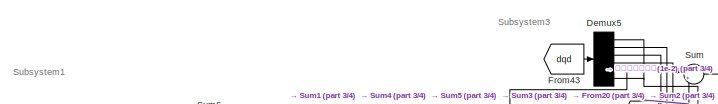
[diagram: root canvas - part 1/4, top center region]
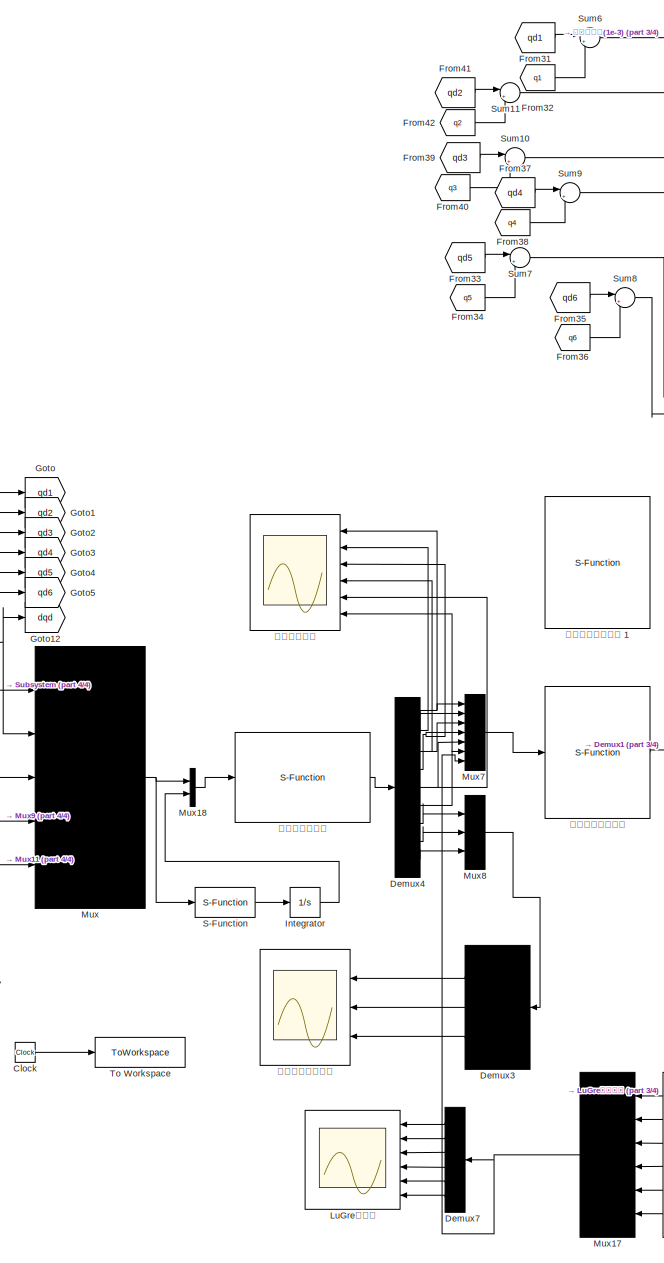
[diagram: root canvas - part 2/4, center side, full height]
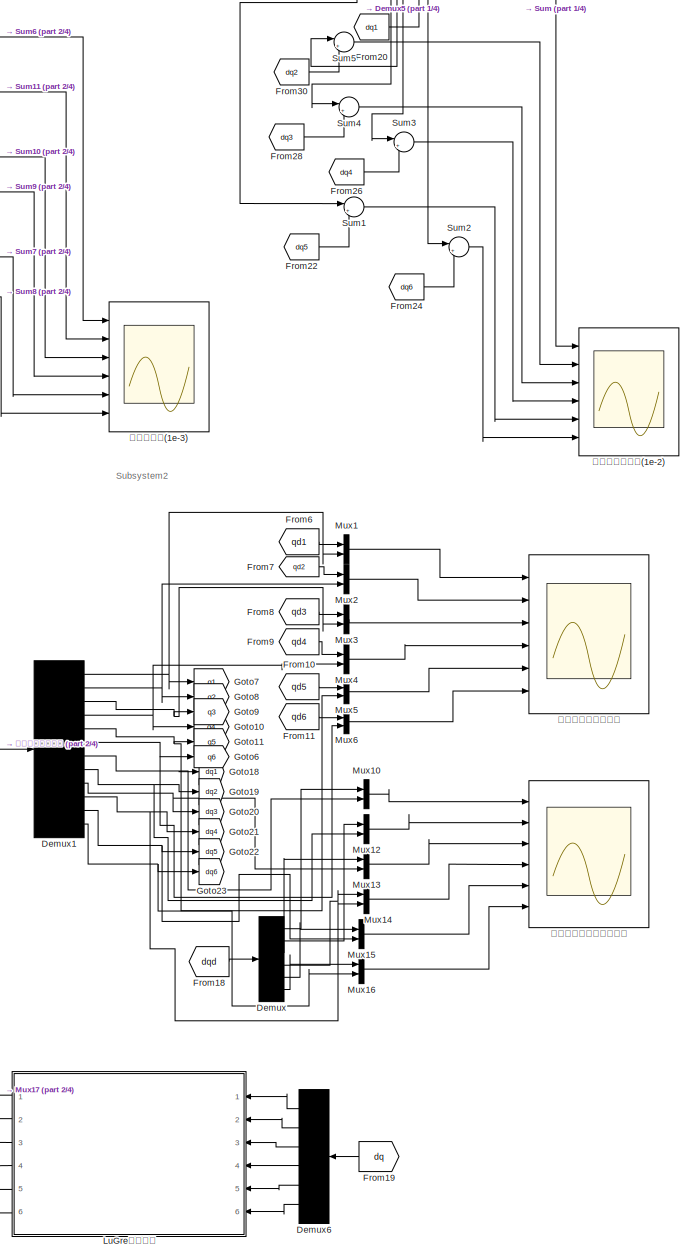
[diagram: root canvas - part 3/4, right side, full height]
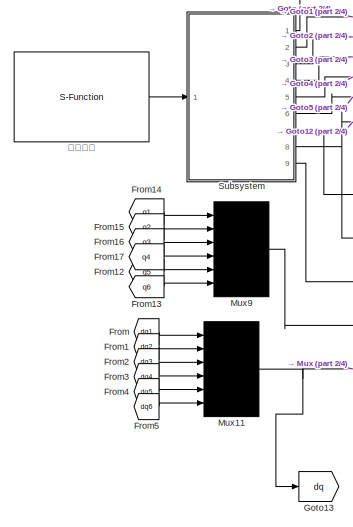
[diagram: root canvas - part 4/4, middle left region]
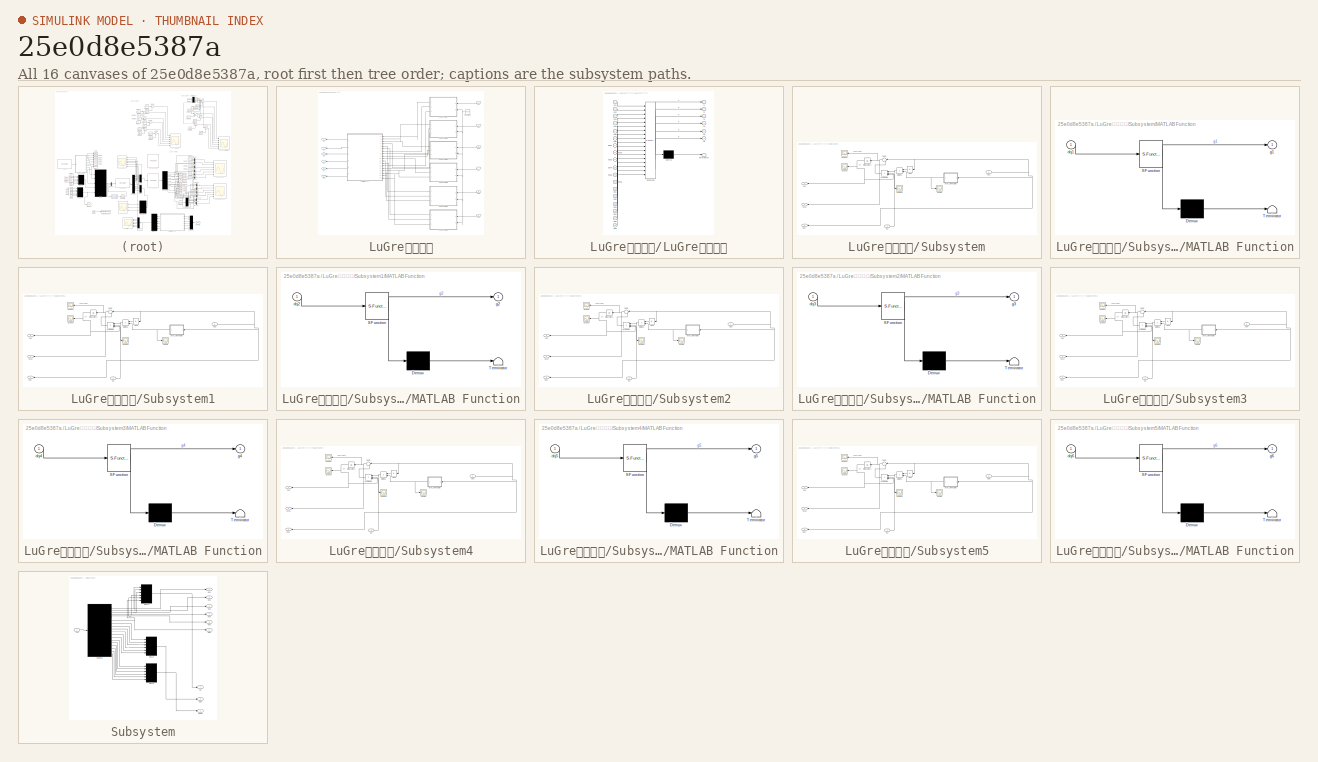
[diagram: thumbnail index - all 16 canvases of the model, root first then tree order]
MODEL slx_25e0d8e5387a
KIND model
CONFIG AbsTol = auto
CONFIG EnableMultiTasking = off
CONFIG FixedStep = 0.01
CONFIG MaxStep = 0.05
CONFIG MinStep = auto
CONFIG RelTol = 1e-3
CONFIG SampleTimeConstraint = Unconstrained
CONFIG Solver = ode45
CONFIG SolverName = ode45
CONFIG StartTime = 0.0
CONFIG StopTime = 5
BLOCK [Clock] Clock
BLOCK [Demux] Demux
  DisplayOption = bar
  Outputs = 6
  Ports = [1, 6]
BLOCK [Demux] Demux1
  DisplayOption = bar
  Outputs = 12
  Ports = [1, 12]
BLOCK [Demux] Demux3
  DisplayOption = bar
  Outputs = 3
  Ports = [1, 3]
BLOCK [Demux] Demux4
  DisplayOption = bar
  Outputs = 9
  Ports = [1, 9]
BLOCK [Demux] Demux5
  DisplayOption = bar
  Outputs = 6
  Ports = [1, 6]
BLOCK [Demux] Demux6
  DisplayOption = bar
  Outputs = 6
  Ports = [1, 6]
BLOCK [Demux] Demux7
  DisplayOption = bar
  Outputs = 6
  Ports = [1, 6]
BLOCK [From] From
  GotoTag = dq1
BLOCK [From] From1
  GotoTag = dq2
BLOCK [From] From10
  GotoTag = qd5
BLOCK [From] From11
  GotoTag = qd6
BLOCK [From] From12
  GotoTag = q5
BLOCK [From] From13
  GotoTag = q6
BLOCK [From] From14
  GotoTag = q1
BLOCK [From] From15
  GotoTag = q2
BLOCK [From] From16
  GotoTag = q3
BLOCK [From] From17
  GotoTag = q4
BLOCK [From] From18
  GotoTag = dqd
BLOCK [From] From19
  GotoTag = dq
BLOCK [From] From2
  GotoTag = dq3
BLOCK [From] From20
  GotoTag = dq1
BLOCK [From] From22
  GotoTag = dq5
BLOCK [From] From24
  GotoTag = dq6
BLOCK [From] From26
  GotoTag = dq4
BLOCK [From] From28
  GotoTag = dq3
BLOCK [From] From3
  GotoTag = dq4
BLOCK [From] From30
  GotoTag = dq2
BLOCK [From] From31
  GotoTag = qd1
BLOCK [From] From32
  GotoTag = q1
BLOCK [From] From33
  GotoTag = qd5
BLOCK [From] From34
  GotoTag = q5
BLOCK [From] From35
  GotoTag = qd6
BLOCK [From] From36
  GotoTag = q6
BLOCK [From] From37
  GotoTag = qd4
BLOCK [From] From38
  GotoTag = q4
BLOCK [From] From39
  GotoTag = qd3
BLOCK [From] From4
  GotoTag = dq5
BLOCK [From] From40
  GotoTag = q3
BLOCK [From] From41
  GotoTag = qd2
BLOCK [From] From42
  GotoTag = q2
BLOCK [From] From43
  GotoTag = dqd
BLOCK [From] From5
  GotoTag = dq6
BLOCK [From] From6
  GotoTag = qd1
BLOCK [From] From7
  GotoTag = qd2
BLOCK [From] From8
  GotoTag = qd3
BLOCK [From] From9
  GotoTag = qd4
BLOCK [Goto] Goto
  GotoTag = qd1
BLOCK [Goto] Goto1
  GotoTag = qd2
BLOCK [Goto] Goto10
  GotoTag = q4
BLOCK [Goto] Goto11
  GotoTag = q5
BLOCK [Goto] Goto12
  GotoTag = dqd
BLOCK [Goto] Goto13
  GotoTag = dq
BLOCK [Goto] Goto18
  GotoTag = dq1
BLOCK [Goto] Goto19
  GotoTag = dq2
BLOCK [Goto] Goto2
  GotoTag = qd3
BLOCK [Goto] Goto20
  GotoTag = dq3
BLOCK [Goto] Goto21
  GotoTag = dq4
BLOCK [Goto] Goto22
  GotoTag = dq5
BLOCK [Goto] Goto23
  GotoTag = dq6
BLOCK [Goto] Goto3
  GotoTag = qd4
BLOCK [Goto] Goto4
  GotoTag = qd5
BLOCK [Goto] Goto5
  GotoTag = qd6
BLOCK [Goto] Goto6
  GotoTag = q6
BLOCK [Goto] Goto7
  GotoTag = q1
BLOCK [Goto] Goto8
  GotoTag = q2
BLOCK [Goto] Goto9
  GotoTag = q3
BLOCK [Integrator] Integrator
  Ports = [1, 1]
BLOCK [Scope] LuGre摩擦力
  Floating = off
  NumInputPorts = 6
  Ports = [6]
  ScopeSpecificationString = Simulink.scopes.TimeScopeBlockCfg('CurrentConfiguration', extmgr.ConfigurationSet(extmgr.Configuration('Core','General UI',true,'FigureColor',[1 1 1]),extmgr.Configuration('Core','Source UI',true),extmgr.Configuration('Sources','WiredSimulink',true,'DataLoggingVariableName','ScopeData1'),extmgr.Configuration('Visuals','Time Domain',true,'SerializedDisplays',{struct('MinYLimReal','-701.30904','MaxY...<+5512ch>
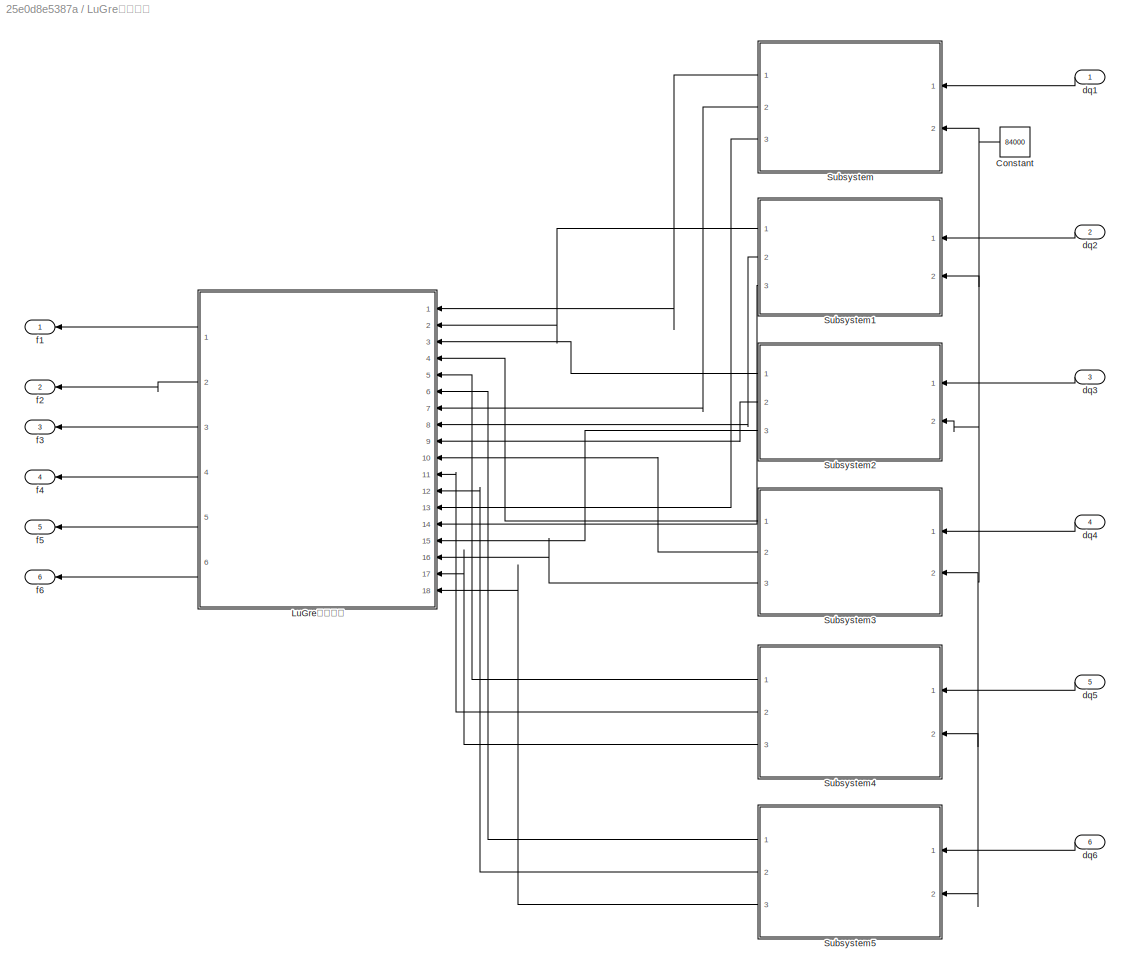
BLOCK [SubSystem] LuGre摩擦模型
  Ports = [6, 6]
  RequestExecContextInheritance = off
BLOCK [Constant] LuGre摩擦模型/Constant
  Value = 84000
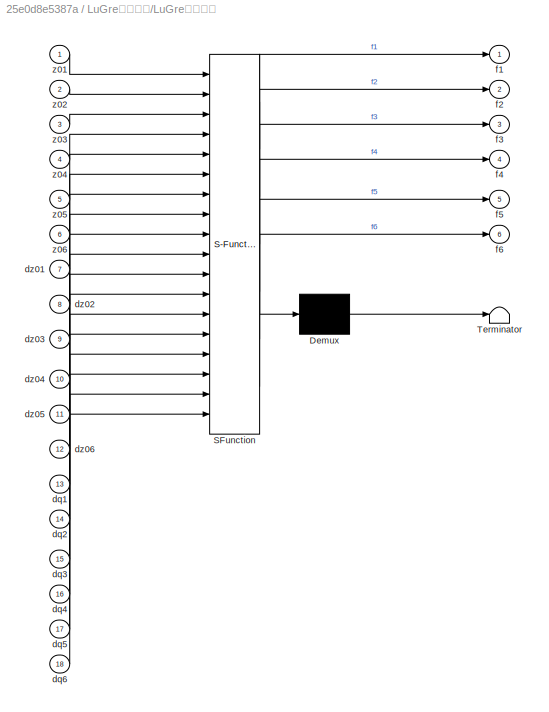
BLOCK [SubSystem] LuGre摩擦模型/LuGre摩擦模型
  ErrorFcn = Stateflow.Translate.translate
  PermitHierarchicalResolution = ExplicitOnly
  Ports = [18, 6]
  RequestExecContextInheritance = off
  SFBlockType = MATLAB Function
  TreatAsAtomicUnit = on
BLOCK [Demux] LuGre摩擦模型/LuGre摩擦模型/ Demux 
  Outputs = 1
  Ports = [1, 1]
BLOCK [S-Function] LuGre摩擦模型/LuGre摩擦模型/ SFunction 
  EnableBusSupport = on
  FunctionName = sf_sfun
  PortCounts = [18 7]
  Ports = [18, 7]
  SFcnIsStateOwnerBlock = off
  SFunctionDeploymentMode = off
  Tag = Stateflow S-Function 7
BLOCK [Terminator] LuGre摩擦模型/LuGre摩擦模型/ Terminator 
BLOCK [Inport] LuGre摩擦模型/LuGre摩擦模型/dq1
  IconDisplay = Port number
  Port = 13
BLOCK [Inport] LuGre摩擦模型/LuGre摩擦模型/dq2
  IconDisplay = Port number
  Port = 14
BLOCK [Inport] LuGre摩擦模型/LuGre摩擦模型/dq3
  IconDisplay = Port number
  Port = 15
BLOCK [Inport] LuGre摩擦模型/LuGre摩擦模型/dq4
  IconDisplay = Port number
  Port = 16
BLOCK [Inport] LuGre摩擦模型/LuGre摩擦模型/dq5
  IconDisplay = Port number
  Port = 17
BLOCK [Inport] LuGre摩擦模型/LuGre摩擦模型/dq6
  IconDisplay = Port number
  Port = 18
BLOCK [Inport] LuGre摩擦模型/LuGre摩擦模型/dz01
  IconDisplay = Port number
  Port = 7
BLOCK [Inport] LuGre摩擦模型/LuGre摩擦模型/dz02
  IconDisplay = Port number
  Port = 8
BLOCK [Inport] LuGre摩擦模型/LuGre摩擦模型/dz03
  IconDisplay = Port number
  Port = 9
BLOCK [Inport] LuGre摩擦模型/LuGre摩擦模型/dz04
  IconDisplay = Port number
  Port = 10
BLOCK [Inport] LuGre摩擦模型/LuGre摩擦模型/dz05
  IconDisplay = Port number
  Port = 11
BLOCK [Inport] LuGre摩擦模型/LuGre摩擦模型/dz06
  IconDisplay = Port number
  Port = 12
BLOCK [Outport] LuGre摩擦模型/LuGre摩擦模型/f1
  IconDisplay = Port number
BLOCK [Outport] LuGre摩擦模型/LuGre摩擦模型/f2
  IconDisplay = Port number
  Port = 2
BLOCK [Outport] LuGre摩擦模型/LuGre摩擦模型/f3
  IconDisplay = Port number
  Port = 3
BLOCK [Outport] LuGre摩擦模型/LuGre摩擦模型/f4
  IconDisplay = Port number
  Port = 4
BLOCK [Outport] LuGre摩擦模型/LuGre摩擦模型/f5
  IconDisplay = Port number
  Port = 5
BLOCK [Outport] LuGre摩擦模型/LuGre摩擦模型/f6
  IconDisplay = Port number
  Port = 6
BLOCK [Inport] LuGre摩擦模型/LuGre摩擦模型/z01
  IconDisplay = Port number
BLOCK [Inport] LuGre摩擦模型/LuGre摩擦模型/z02
  IconDisplay = Port number
  Port = 2
BLOCK [Inport] LuGre摩擦模型/LuGre摩擦模型/z03
  IconDisplay = Port number
  Port = 3
BLOCK [Inport] LuGre摩擦模型/LuGre摩擦模型/z04
  IconDisplay = Port number
  Port = 4
BLOCK [Inport] LuGre摩擦模型/LuGre摩擦模型/z05
  IconDisplay = Port number
  Port = 5
BLOCK [Inport] LuGre摩擦模型/LuGre摩擦模型/z06
  IconDisplay = Port number
  Port = 6
BLOCK [SubSystem] LuGre摩擦模型/Subsystem
  Ports = [2, 3]
  RequestExecContextInheritance = off
BLOCK [Abs] LuGre摩擦模型/Subsystem/Abs2
  SaturateOnIntegerOverflow = off
BLOCK [Product] LuGre摩擦模型/Subsystem/Divide1
  InputSameDT = off
  Inputs = */
  OutDataTypeStr = Inherit: Inherit via internal rule
  Ports = [2, 1]
  RndMeth = Floor
  SaturateOnIntegerOverflow = off
BLOCK [Inport] LuGre摩擦模型/Subsystem/In2
  IconDisplay = Port number
  Port = 2
BLOCK [Integrator] LuGre摩擦模型/Subsystem/Integrator1
  Ports = [1, 1]
BLOCK [SubSystem] LuGre摩擦模型/Subsystem/MATLAB Function
  ErrorFcn = Stateflow.Translate.translate
  PermitHierarchicalResolution = ExplicitOnly
  Ports = [1, 1]
  RequestExecContextInheritance = off
  SFBlockType = MATLAB Function
  TreatAsAtomicUnit = on
BLOCK [Demux] LuGre摩擦模型/Subsystem/MATLAB Function/ Demux 
  Outputs = 1
  Ports = [1, 1]
BLOCK [S-Function] LuGre摩擦模型/Subsystem/MATLAB Function/ SFunction 
  EnableBusSupport = on
  FunctionName = sf_sfun
  PortCounts = [1 2]
  Ports = [1, 2]
  SFcnIsStateOwnerBlock = off
  SFunctionDeploymentMode = off
  Tag = Stateflow S-Function 8
BLOCK [Terminator] LuGre摩擦模型/Subsystem/MATLAB Function/ Terminator 
BLOCK [Inport] LuGre摩擦模型/Subsystem/MATLAB Function/dq1
  IconDisplay = Port number
BLOCK [Outport] LuGre摩擦模型/Subsystem/MATLAB Function/g1
  IconDisplay = Port number
BLOCK [Product] LuGre摩擦模型/Subsystem/Product1
  InputSameDT = off
  Inputs = 3
  OutDataTypeStr = Inherit: Inherit via internal rule
  Ports = [3, 1]
  RndMeth = Floor
  SaturateOnIntegerOverflow = off
BLOCK [Scope] LuGre摩擦模型/Subsystem/Scope
  Floating = off
  NumInputPorts = 1
  Ports = [1]
  ScopeSpecificationString = Simulink.scopes.TimeScopeBlockCfg('CurrentConfiguration', extmgr.ConfigurationSet(extmgr.Configuration('Core','General UI',true),extmgr.Configuration('Core','Source UI',true),extmgr.Configuration('Sources','WiredSimulink',true,'DataLoggingVariableName','ScopeData2'),extmgr.Configuration('Visuals','Time Domain',true,'SerializedDisplays',{struct('MinYLimReal','0.00281','MaxYLimReal','0.00469','YLabe...<+1426ch>  <repeated x6 — deduplicated; at blocks: Scope>
BLOCK [Scope] LuGre摩擦模型/Subsystem/Scope1
  Floating = off
  NumInputPorts = 1
  Ports = [1]
  ScopeSpecificationString = Simulink.scopes.TimeScopeBlockCfg('CurrentConfiguration', extmgr.ConfigurationSet(extmgr.Configuration('Core','General UI',true),extmgr.Configuration('Core','Source UI',true),extmgr.Configuration('Sources','WiredSimulink',true,'DataLoggingVariableName','ScopeData3'),extmgr.Configuration('Visuals','Time Domain',true,'SerializedDisplays',{struct('MinYLimReal','-0.18084','MaxYLimReal','0.57565','YLab...<+1417ch>  <repeated x6 — deduplicated; at blocks: Scope1>
BLOCK [Scope] LuGre摩擦模型/Subsystem/Scope2
  Floating = off
  NumInputPorts = 1
  Ports = [1]
  ScopeSpecificationString = Simulink.scopes.TimeScopeBlockCfg('CurrentConfiguration', extmgr.ConfigurationSet(extmgr.Configuration('Core','General UI',true),extmgr.Configuration('Core','Source UI',true),extmgr.Configuration('Sources','WiredSimulink',true,'DataLoggingVariableName','ScopeData4'),extmgr.Configuration('Visuals','Time Domain',true,'SerializedDisplays',{struct('MinYLimReal','17884.97608','MaxYLimReal','20554.9873'...<+1465ch>  <repeated x6 — deduplicated; at blocks: Scope2>
BLOCK [Scope] LuGre摩擦模型/Subsystem/Scope3
  Floating = off
  NumInputPorts = 1
  Ports = [1]
  ScopeSpecificationString = Simulink.scopes.TimeScopeBlockCfg('CurrentConfiguration', extmgr.ConfigurationSet(extmgr.Configuration('Core','General UI',true),extmgr.Configuration('Core','Source UI',true),extmgr.Configuration('Sources','WiredSimulink',true,'DataLoggingVariableName','ScopeData5'),extmgr.Configuration('Visuals','Time Domain',true,'SerializedDisplays',{struct('MinYLimReal','-0.00005','MaxYLimReal','0.00043','YLab...<+1459ch>  <repeated x6 — deduplicated; at blocks: Scope3>
BLOCK [Sum] LuGre摩擦模型/Subsystem/Sum1
  IconShape = round
  InputSameDT = off
  Inputs = |+-
  OutDataTypeStr = Inherit: Inherit via internal rule
  Ports = [2, 1]
  SaturateOnIntegerOverflow = off
BLOCK [Inport] LuGre摩擦模型/Subsystem/dq1
  IconDisplay = Port number
BLOCK [Outport] LuGre摩擦模型/Subsystem/dq1.
  IconDisplay = Port number
  Port = 3
BLOCK [Outport] LuGre摩擦模型/Subsystem/dz01
  IconDisplay = Port number
  Port = 2
BLOCK [Outport] LuGre摩擦模型/Subsystem/z01
  IconDisplay = Port number
BLOCK [SubSystem] LuGre摩擦模型/Subsystem1
  Ports = [2, 3]
  RequestExecContextInheritance = off
BLOCK [Abs] LuGre摩擦模型/Subsystem1/Abs2
  SaturateOnIntegerOverflow = off
BLOCK [Product] LuGre摩擦模型/Subsystem1/Divide1
  InputSameDT = off
  Inputs = */
  OutDataTypeStr = Inherit: Inherit via internal rule
  Ports = [2, 1]
  RndMeth = Floor
  SaturateOnIntegerOverflow = off
BLOCK [Inport] LuGre摩擦模型/Subsystem1/In2
  IconDisplay = Port number
  Port = 2
BLOCK [Integrator] LuGre摩擦模型/Subsystem1/Integrator1
  Ports = [1, 1]
BLOCK [SubSystem] LuGre摩擦模型/Subsystem1/MATLAB Function
  ErrorFcn = Stateflow.Translate.translate
  PermitHierarchicalResolution = ExplicitOnly
  Ports = [1, 1]
  RequestExecContextInheritance = off
  SFBlockType = MATLAB Function
  TreatAsAtomicUnit = on
BLOCK [Demux] LuGre摩擦模型/Subsystem1/MATLAB Function/ Demux 
  Outputs = 1
  Ports = [1, 1]
BLOCK [S-Function] LuGre摩擦模型/Subsystem1/MATLAB Function/ SFunction 
  EnableBusSupport = on
  FunctionName = sf_sfun
  PortCounts = [1 2]
  Ports = [1, 2]
  SFcnIsStateOwnerBlock = off
  SFunctionDeploymentMode = off
  Tag = Stateflow S-Function 1
BLOCK [Terminator] LuGre摩擦模型/Subsystem1/MATLAB Function/ Terminator 
BLOCK [Inport] LuGre摩擦模型/Subsystem1/MATLAB Function/dq2
  IconDisplay = Port number
BLOCK [Outport] LuGre摩擦模型/Subsystem1/MATLAB Function/g2
  IconDisplay = Port number
BLOCK [Product] LuGre摩擦模型/Subsystem1/Product1
  InputSameDT = off
  Inputs = 3
  OutDataTypeStr = Inherit: Inherit via internal rule
  Ports = [3, 1]
  RndMeth = Floor
  SaturateOnIntegerOverflow = off
BLOCK [Scope] LuGre摩擦模型/Subsystem1/Scope
  Floating = off
  NumInputPorts = 1
  Ports = [1]
BLOCK [Scope] LuGre摩擦模型/Subsystem1/Scope1
  Floating = off
  NumInputPorts = 1
  Ports = [1]
BLOCK [Scope] LuGre摩擦模型/Subsystem1/Scope2
  Floating = off
  NumInputPorts = 1
  Ports = [1]
BLOCK [Scope] LuGre摩擦模型/Subsystem1/Scope3
  Floating = off
  NumInputPorts = 1
  Ports = [1]
BLOCK [Sum] LuGre摩擦模型/Subsystem1/Sum1
  IconShape = round
  InputSameDT = off
  Inputs = |+-
  OutDataTypeStr = Inherit: Inherit via internal rule
  Ports = [2, 1]
  SaturateOnIntegerOverflow = off
BLOCK [Inport] LuGre摩擦模型/Subsystem1/dq2
  IconDisplay = Port number
BLOCK [Outport] LuGre摩擦模型/Subsystem1/dq2.
  IconDisplay = Port number
  Port = 3
BLOCK [Outport] LuGre摩擦模型/Subsystem1/dz02
  IconDisplay = Port number
  Port = 2
BLOCK [Outport] LuGre摩擦模型/Subsystem1/z02
  IconDisplay = Port number
BLOCK [SubSystem] LuGre摩擦模型/Subsystem2
  Ports = [2, 3]
  RequestExecContextInheritance = off
BLOCK [Abs] LuGre摩擦模型/Subsystem2/Abs2
  SaturateOnIntegerOverflow = off
BLOCK [Product] LuGre摩擦模型/Subsystem2/Divide1
  InputSameDT = off
  Inputs = */
  OutDataTypeStr = Inherit: Inherit via internal rule
  Ports = [2, 1]
  RndMeth = Floor
  SaturateOnIntegerOverflow = off
BLOCK [Inport] LuGre摩擦模型/Subsystem2/In2
  IconDisplay = Port number
  Port = 2
BLOCK [Integrator] LuGre摩擦模型/Subsystem2/Integrator1
  Ports = [1, 1]
BLOCK [SubSystem] LuGre摩擦模型/Subsystem2/MATLAB Function
  ErrorFcn = Stateflow.Translate.translate
  PermitHierarchicalResolution = ExplicitOnly
  Ports = [1, 1]
  RequestExecContextInheritance = off
  SFBlockType = MATLAB Function
  TreatAsAtomicUnit = on
BLOCK [Demux] LuGre摩擦模型/Subsystem2/MATLAB Function/ Demux 
  Outputs = 1
  Ports = [1, 1]
BLOCK [S-Function] LuGre摩擦模型/Subsystem2/MATLAB Function/ SFunction 
  EnableBusSupport = on
  FunctionName = sf_sfun
  PortCounts = [1 2]
  Ports = [1, 2]
  SFcnIsStateOwnerBlock = off
  SFunctionDeploymentMode = off
  Tag = Stateflow S-Function 2
BLOCK [Terminator] LuGre摩擦模型/Subsystem2/MATLAB Function/ Terminator 
BLOCK [Inport] LuGre摩擦模型/Subsystem2/MATLAB Function/dq3
  IconDisplay = Port number
BLOCK [Outport] LuGre摩擦模型/Subsystem2/MATLAB Function/g3
  IconDisplay = Port number
BLOCK [Product] LuGre摩擦模型/Subsystem2/Product1
  InputSameDT = off
  Inputs = 3
  OutDataTypeStr = Inherit: Inherit via internal rule
  Ports = [3, 1]
  RndMeth = Floor
  SaturateOnIntegerOverflow = off
BLOCK [Scope] LuGre摩擦模型/Subsystem2/Scope
  Floating = off
  NumInputPorts = 1
  Ports = [1]
BLOCK [Scope] LuGre摩擦模型/Subsystem2/Scope1
  Floating = off
  NumInputPorts = 1
  Ports = [1]
BLOCK [Scope] LuGre摩擦模型/Subsystem2/Scope2
  Floating = off
  NumInputPorts = 1
  Ports = [1]
BLOCK [Scope] LuGre摩擦模型/Subsystem2/Scope3
  Floating = off
  NumInputPorts = 1
  Ports = [1]
BLOCK [Sum] LuGre摩擦模型/Subsystem2/Sum1
  IconShape = round
  InputSameDT = off
  Inputs = |+-
  OutDataTypeStr = Inherit: Inherit via internal rule
  Ports = [2, 1]
  SaturateOnIntegerOverflow = off
BLOCK [Inport] LuGre摩擦模型/Subsystem2/dq3
  IconDisplay = Port number
BLOCK [Outport] LuGre摩擦模型/Subsystem2/dq3.
  IconDisplay = Port number
  Port = 3
BLOCK [Outport] LuGre摩擦模型/Subsystem2/dz03
  IconDisplay = Port number
  Port = 2
BLOCK [Outport] LuGre摩擦模型/Subsystem2/z03
  IconDisplay = Port number
BLOCK [SubSystem] LuGre摩擦模型/Subsystem3
  Ports = [2, 3]
  RequestExecContextInheritance = off
BLOCK [Abs] LuGre摩擦模型/Subsystem3/Abs2
  SaturateOnIntegerOverflow = off
BLOCK [Product] LuGre摩擦模型/Subsystem3/Divide1
  InputSameDT = off
  Inputs = */
  OutDataTypeStr = Inherit: Inherit via internal rule
  Ports = [2, 1]
  RndMeth = Floor
  SaturateOnIntegerOverflow = off
BLOCK [Inport] LuGre摩擦模型/Subsystem3/In2
  IconDisplay = Port number
  Port = 2
BLOCK [Integrator] LuGre摩擦模型/Subsystem3/Integrator1
  Ports = [1, 1]
BLOCK [SubSystem] LuGre摩擦模型/Subsystem3/MATLAB Function
  ErrorFcn = Stateflow.Translate.translate
  PermitHierarchicalResolution = ExplicitOnly
  Ports = [1, 1]
  RequestExecContextInheritance = off
  SFBlockType = MATLAB Function
  TreatAsAtomicUnit = on
BLOCK [Demux] LuGre摩擦模型/Subsystem3/MATLAB Function/ Demux 
  Outputs = 1
  Ports = [1, 1]
BLOCK [S-Function] LuGre摩擦模型/Subsystem3/MATLAB Function/ SFunction 
  EnableBusSupport = on
  FunctionName = sf_sfun
  PortCounts = [1 2]
  Ports = [1, 2]
  SFcnIsStateOwnerBlock = off
  SFunctionDeploymentMode = off
  Tag = Stateflow S-Function 3
BLOCK [Terminator] LuGre摩擦模型/Subsystem3/MATLAB Function/ Terminator 
BLOCK [Inport] LuGre摩擦模型/Subsystem3/MATLAB Function/dq4
  IconDisplay = Port number
BLOCK [Outport] LuGre摩擦模型/Subsystem3/MATLAB Function/g4
  IconDisplay = Port number
BLOCK [Product] LuGre摩擦模型/Subsystem3/Product1
  InputSameDT = off
  Inputs = 3
  OutDataTypeStr = Inherit: Inherit via internal rule
  Ports = [3, 1]
  RndMeth = Floor
  SaturateOnIntegerOverflow = off
BLOCK [Scope] LuGre摩擦模型/Subsystem3/Scope
  Floating = off
  NumInputPorts = 1
  Ports = [1]
BLOCK [Scope] LuGre摩擦模型/Subsystem3/Scope1
  Floating = off
  NumInputPorts = 1
  Ports = [1]
BLOCK [Scope] LuGre摩擦模型/Subsystem3/Scope2
  Floating = off
  NumInputPorts = 1
  Ports = [1]
BLOCK [Scope] LuGre摩擦模型/Subsystem3/Scope3
  Floating = off
  NumInputPorts = 1
  Ports = [1]
BLOCK [Sum] LuGre摩擦模型/Subsystem3/Sum1
  IconShape = round
  InputSameDT = off
  Inputs = |+-
  OutDataTypeStr = Inherit: Inherit via internal rule
  Ports = [2, 1]
  SaturateOnIntegerOverflow = off
BLOCK [Inport] LuGre摩擦模型/Subsystem3/dq4
  IconDisplay = Port number
BLOCK [Outport] LuGre摩擦模型/Subsystem3/dq4.
  IconDisplay = Port number
  Port = 3
BLOCK [Outport] LuGre摩擦模型/Subsystem3/dz04
  IconDisplay = Port number
  Port = 2
BLOCK [Outport] LuGre摩擦模型/Subsystem3/z04
  IconDisplay = Port number
BLOCK [SubSystem] LuGre摩擦模型/Subsystem4
  Ports = [2, 3]
  RequestExecContextInheritance = off
BLOCK [Abs] LuGre摩擦模型/Subsystem4/Abs2
  SaturateOnIntegerOverflow = off
BLOCK [Product] LuGre摩擦模型/Subsystem4/Divide1
  InputSameDT = off
  Inputs = */
  OutDataTypeStr = Inherit: Inherit via internal rule
  Ports = [2, 1]
  RndMeth = Floor
  SaturateOnIntegerOverflow = off
BLOCK [Inport] LuGre摩擦模型/Subsystem4/In2
  IconDisplay = Port number
  Port = 2
BLOCK [Integrator] LuGre摩擦模型/Subsystem4/Integrator1
  Ports = [1, 1]
BLOCK [SubSystem] LuGre摩擦模型/Subsystem4/MATLAB Function
  ErrorFcn = Stateflow.Translate.translate
  PermitHierarchicalResolution = ExplicitOnly
  Ports = [1, 1]
  RequestExecContextInheritance = off
  SFBlockType = MATLAB Function
  TreatAsAtomicUnit = on
BLOCK [Demux] LuGre摩擦模型/Subsystem4/MATLAB Function/ Demux 
  Outputs = 1
  Ports = [1, 1]
BLOCK [S-Function] LuGre摩擦模型/Subsystem4/MATLAB Function/ SFunction 
  EnableBusSupport = on
  FunctionName = sf_sfun
  PortCounts = [1 2]
  Ports = [1, 2]
  SFcnIsStateOwnerBlock = off
  SFunctionDeploymentMode = off
  Tag = Stateflow S-Function 4
BLOCK [Terminator] LuGre摩擦模型/Subsystem4/MATLAB Function/ Terminator 
BLOCK [Inport] LuGre摩擦模型/Subsystem4/MATLAB Function/dq5
  IconDisplay = Port number
BLOCK [Outport] LuGre摩擦模型/Subsystem4/MATLAB Function/g5
  IconDisplay = Port number
BLOCK [Product] LuGre摩擦模型/Subsystem4/Product1
  InputSameDT = off
  Inputs = 3
  OutDataTypeStr = Inherit: Inherit via internal rule
  Ports = [3, 1]
  RndMeth = Floor
  SaturateOnIntegerOverflow = off
BLOCK [Scope] LuGre摩擦模型/Subsystem4/Scope
  Floating = off
  NumInputPorts = 1
  Ports = [1]
BLOCK [Scope] LuGre摩擦模型/Subsystem4/Scope1
  Floating = off
  NumInputPorts = 1
  Ports = [1]
BLOCK [Scope] LuGre摩擦模型/Subsystem4/Scope2
  Floating = off
  NumInputPorts = 1
  Ports = [1]
BLOCK [Scope] LuGre摩擦模型/Subsystem4/Scope3
  Floating = off
  NumInputPorts = 1
  Ports = [1]
BLOCK [Sum] LuGre摩擦模型/Subsystem4/Sum1
  IconShape = round
  InputSameDT = off
  Inputs = |+-
  OutDataTypeStr = Inherit: Inherit via internal rule
  Ports = [2, 1]
  SaturateOnIntegerOverflow = off
BLOCK [Inport] LuGre摩擦模型/Subsystem4/dq5
  IconDisplay = Port number
BLOCK [Outport] LuGre摩擦模型/Subsystem4/dq5.
  IconDisplay = Port number
  Port = 3
BLOCK [Outport] LuGre摩擦模型/Subsystem4/dz05
  IconDisplay = Port number
  Port = 2
BLOCK [Outport] LuGre摩擦模型/Subsystem4/z05
  IconDisplay = Port number
BLOCK [SubSystem] LuGre摩擦模型/Subsystem5
  Ports = [2, 3]
  RequestExecContextInheritance = off
BLOCK [Abs] LuGre摩擦模型/Subsystem5/Abs2
  SaturateOnIntegerOverflow = off
BLOCK [Product] LuGre摩擦模型/Subsystem5/Divide1
  InputSameDT = off
  Inputs = */
  OutDataTypeStr = Inherit: Inherit via internal rule
  Ports = [2, 1]
  RndMeth = Floor
  SaturateOnIntegerOverflow = off
BLOCK [Inport] LuGre摩擦模型/Subsystem5/In2
  IconDisplay = Port number
  Port = 2
BLOCK [Integrator] LuGre摩擦模型/Subsystem5/Integrator1
  Ports = [1, 1]
BLOCK [SubSystem] LuGre摩擦模型/Subsystem5/MATLAB Function
  ErrorFcn = Stateflow.Translate.translate
  PermitHierarchicalResolution = ExplicitOnly
  Ports = [1, 1]
  RequestExecContextInheritance = off
  SFBlockType = MATLAB Function
  TreatAsAtomicUnit = on
BLOCK [Demux] LuGre摩擦模型/Subsystem5/MATLAB Function/ Demux 
  Outputs = 1
  Ports = [1, 1]
BLOCK [S-Function] LuGre摩擦模型/Subsystem5/MATLAB Function/ SFunction 
  EnableBusSupport = on
  FunctionName = sf_sfun
  PortCounts = [1 2]
  Ports = [1, 2]
  SFcnIsStateOwnerBlock = off
  SFunctionDeploymentMode = off
  Tag = Stateflow S-Function 5
BLOCK [Terminator] LuGre摩擦模型/Subsystem5/MATLAB Function/ Terminator 
BLOCK [Inport] LuGre摩擦模型/Subsystem5/MATLAB Function/dq6
  IconDisplay = Port number
BLOCK [Outport] LuGre摩擦模型/Subsystem5/MATLAB Function/g6
  IconDisplay = Port number
BLOCK [Product] LuGre摩擦模型/Subsystem5/Product1
  InputSameDT = off
  Inputs = 3
  OutDataTypeStr = Inherit: Inherit via internal rule
  Ports = [3, 1]
  RndMeth = Floor
  SaturateOnIntegerOverflow = off
BLOCK [Scope] LuGre摩擦模型/Subsystem5/Scope
  Floating = off
  NumInputPorts = 1
  Ports = [1]
BLOCK [Scope] LuGre摩擦模型/Subsystem5/Scope1
  Floating = off
  NumInputPorts = 1
  Ports = [1]
BLOCK [Scope] LuGre摩擦模型/Subsystem5/Scope2
  Floating = off
  NumInputPorts = 1
  Ports = [1]
BLOCK [Scope] LuGre摩擦模型/Subsystem5/Scope3
  Floating = off
  NumInputPorts = 1
  Ports = [1]
BLOCK [Sum] LuGre摩擦模型/Subsystem5/Sum1
  IconShape = round
  InputSameDT = off
  Inputs = |+-
  OutDataTypeStr = Inherit: Inherit via internal rule
  Ports = [2, 1]
  SaturateOnIntegerOverflow = off
BLOCK [Inport] LuGre摩擦模型/Subsystem5/dq6
  IconDisplay = Port number
BLOCK [Outport] LuGre摩擦模型/Subsystem5/dq6.
  IconDisplay = Port number
  Port = 3
BLOCK [Outport] LuGre摩擦模型/Subsystem5/dz06
  IconDisplay = Port number
  Port = 2
BLOCK [Outport] LuGre摩擦模型/Subsystem5/z06
  IconDisplay = Port number
BLOCK [Inport] LuGre摩擦模型/dq1
  IconDisplay = Port number
BLOCK [Inport] LuGre摩擦模型/dq2
  IconDisplay = Port number
  Port = 2
BLOCK [Inport] LuGre摩擦模型/dq3
  IconDisplay = Port number
  Port = 3
BLOCK [Inport] LuGre摩擦模型/dq4
  IconDisplay = Port number
  Port = 4
BLOCK [Inport] LuGre摩擦模型/dq5
  IconDisplay = Port number
  Port = 5
BLOCK [Inport] LuGre摩擦模型/dq6
  IconDisplay = Port number
  Port = 6
BLOCK [Outport] LuGre摩擦模型/f1
  IconDisplay = Port number
BLOCK [Outport] LuGre摩擦模型/f2
  IconDisplay = Port number
  Port = 2
BLOCK [Outport] LuGre摩擦模型/f3
  IconDisplay = Port number
  Port = 3
BLOCK [Outport] LuGre摩擦模型/f4
  IconDisplay = Port number
  Port = 4
BLOCK [Outport] LuGre摩擦模型/f5
  IconDisplay = Port number
  Port = 5
BLOCK [Outport] LuGre摩擦模型/f6
  IconDisplay = Port number
  Port = 6
BLOCK [Mux] Mux
  DisplayOption = bar
  Inputs = 5
  Ports = [5, 1]
BLOCK [Mux] Mux1
  DisplayOption = bar
  Inputs = 2
  Ports = [2, 1]
BLOCK [Mux] Mux10
  DisplayOption = bar
  Inputs = 2
  Ports = [2, 1]
BLOCK [Mux] Mux11
  DisplayOption = bar
  Inputs = 6
  Ports = [6, 1]
BLOCK [Mux] Mux12
  DisplayOption = bar
  Inputs = 2
  Ports = [2, 1]
BLOCK [Mux] Mux13
  DisplayOption = bar
  Inputs = 2
  Ports = [2, 1]
BLOCK [Mux] Mux14
  DisplayOption = bar
  Inputs = 2
  Ports = [2, 1]
BLOCK [Mux] Mux15
  DisplayOption = bar
  Inputs = 2
  Ports = [2, 1]
BLOCK [Mux] Mux16
  DisplayOption = bar
  Inputs = 2
  Ports = [2, 1]
BLOCK [Mux] Mux17
  DisplayOption = bar
  Inputs = 6
  Ports = [6, 1]
BLOCK [Mux] Mux18
  DisplayOption = bar
  Inputs = 2
  Ports = [2, 1]
BLOCK [Mux] Mux2
  DisplayOption = bar
  Inputs = 2
  Ports = [2, 1]
BLOCK [Mux] Mux3
  DisplayOption = bar
  Inputs = 2
  Ports = [2, 1]
BLOCK [Mux] Mux4
  DisplayOption = bar
  Inputs = 2
  Ports = [2, 1]
BLOCK [Mux] Mux5
  DisplayOption = bar
  Inputs = 2
  Ports = [2, 1]
BLOCK [Mux] Mux6
  DisplayOption = bar
  Inputs = 2
  Ports = [2, 1]
BLOCK [Mux] Mux7
  DisplayOption = bar
  Inputs = 7
  Ports = [7, 1]
BLOCK [Mux] Mux8
  DisplayOption = bar
  Inputs = 3
  Ports = [3, 1]
BLOCK [Mux] Mux9
  DisplayOption = bar
  Inputs = 6
  Ports = [6, 1]
BLOCK [S-Function] S-Function
  EnableBusSupport = off
  FunctionName = CRP_S
  Ports = [1, 1]
  SFcnIsStateOwnerBlock = off
  SFunctionDeploymentMode = off
BLOCK [SubSystem] Subsystem
  Ports = [1, 9]
  RequestExecContextInheritance = off
  TreatAsAtomicUnit = on
BLOCK [Demux] Subsystem/Demux5
  DisplayOption = bar
  Outputs = 18
  Ports = [1, 18]
BLOCK [Inport] Subsystem/In1
  IconDisplay = Port number
BLOCK [Mux] Subsystem/Mux12
  DisplayOption = bar
  Inputs = 6
  Ports = [6, 1]
BLOCK [Mux] Subsystem/Mux13
  DisplayOption = bar
  Inputs = 6
  Ports = [6, 1]
BLOCK [Mux] Subsystem/Mux14
  DisplayOption = bar
  Inputs = 6
  Ports = [6, 1]
BLOCK [Outport] Subsystem/ddqd
  IconDisplay = Port number
  Port = 9
BLOCK [Outport] Subsystem/dqd
  IconDisplay = Port number
  Port = 8
BLOCK [Outport] Subsystem/qd
  IconDisplay = Port number
  Port = 7
BLOCK [Outport] Subsystem/qd1
  IconDisplay = Port number
BLOCK [Outport] Subsystem/qd2
  IconDisplay = Port number
  Port = 2
BLOCK [Outport] Subsystem/qd3
  IconDisplay = Port number
  Port = 3
BLOCK [Outport] Subsystem/qd4
  IconDisplay = Port number
  Port = 4
BLOCK [Outport] Subsystem/qd5
  IconDisplay = Port number
  Port = 5
BLOCK [Outport] Subsystem/qd6
  IconDisplay = Port number
  Port = 6
BLOCK [Sum] Sum
  IconShape = round
  InputSameDT = off
  Inputs = |+-
  OutDataTypeStr = Inherit: Inherit via internal rule
  Ports = [2, 1]
  SaturateOnIntegerOverflow = off
BLOCK [Sum] Sum1
  IconShape = round
  InputSameDT = off
  Inputs = |+-
  OutDataTypeStr = Inherit: Inherit via internal rule
  Ports = [2, 1]
  SaturateOnIntegerOverflow = off
BLOCK [Sum] Sum10
  IconShape = round
  InputSameDT = off
  Inputs = |+-
  OutDataTypeStr = Inherit: Inherit via internal rule
  Ports = [2, 1]
  SaturateOnIntegerOverflow = off
BLOCK [Sum] Sum11
  IconShape = round
  InputSameDT = off
  Inputs = |+-
  OutDataTypeStr = Inherit: Inherit via internal rule
  Ports = [2, 1]
  SaturateOnIntegerOverflow = off
BLOCK [Sum] Sum2
  IconShape = round
  InputSameDT = off
  Inputs = |+-
  OutDataTypeStr = Inherit: Inherit via internal rule
  Ports = [2, 1]
  SaturateOnIntegerOverflow = off
BLOCK [Sum] Sum3
  IconShape = round
  InputSameDT = off
  Inputs = |+-
  OutDataTypeStr = Inherit: Inherit via internal rule
  Ports = [2, 1]
  SaturateOnIntegerOverflow = off
BLOCK [Sum] Sum4
  IconShape = round
  InputSameDT = off
  Inputs = |+-
  OutDataTypeStr = Inherit: Inherit via internal rule
  Ports = [2, 1]
  SaturateOnIntegerOverflow = off
BLOCK [Sum] Sum5
  IconShape = round
  InputSameDT = off
  Inputs = |+-
  OutDataTypeStr = Inherit: Inherit via internal rule
  Ports = [2, 1]
  SaturateOnIntegerOverflow = off
BLOCK [Sum] Sum6
  IconShape = round
  InputSameDT = off
  Inputs = |+-
  OutDataTypeStr = Inherit: Inherit via internal rule
  Ports = [2, 1]
  SaturateOnIntegerOverflow = off
BLOCK [Sum] Sum7
  IconShape = round
  InputSameDT = off
  Inputs = |+-
  OutDataTypeStr = Inherit: Inherit via internal rule
  Ports = [2, 1]
  SaturateOnIntegerOverflow = off
BLOCK [Sum] Sum8
  IconShape = round
  InputSameDT = off
  Inputs = |+-
  OutDataTypeStr = Inherit: Inherit via internal rule
  Ports = [2, 1]
  SaturateOnIntegerOverflow = off
BLOCK [Sum] Sum9
  IconShape = round
  InputSameDT = off
  Inputs = |+-
  OutDataTypeStr = Inherit: Inherit via internal rule
  Ports = [2, 1]
  SaturateOnIntegerOverflow = off
BLOCK [ToWorkspace] To Workspace
  FixptAsFi = on
  MaxDataPoints = inf
  Ports = [1]
  SampleTime = -1
  SaveFormat = Timeseries
  VariableName = time
BLOCK [Scope] 三个矩阵的估计值
  Floating = off
  NumInputPorts = 3
  Ports = [3]
  ScopeSpecificationString = Simulink.scopes.TimeScopeBlockCfg('CurrentConfiguration', extmgr.ConfigurationSet(extmgr.Configuration('Core','General UI',true,'FigureColor',[1 1 1]),extmgr.Configuration('Core','Source UI',true),extmgr.Configuration('Sources','WiredSimulink',true,'DataLoggingVariableName','ScopeData3'),extmgr.Configuration('Visuals','Time Domain',true,'SerializedDisplays',{struct('MinYLimReal','-10.09791','MaxYL...<+3060ch>
BLOCK [Scope] 六个关节力矩
  Floating = off
  NumInputPorts = 6
  Ports = [6]
  ScopeSpecificationString = Simulink.scopes.TimeScopeBlockCfg('CurrentConfiguration', extmgr.ConfigurationSet(extmgr.Configuration('Core','General UI',true,'FigureColor',[1 1 1]),extmgr.Configuration('Core','Source UI',true),extmgr.Configuration('Sources','WiredSimulink',true,'DataLoggingVariableName','ScopeData2'),extmgr.Configuration('Visuals','Time Domain',true,'SerializedDisplays',{struct('MinYLimReal','-30740.16721','Ma...<+6356ch>
BLOCK [S-Function] 六关节动力学模型 
  EnableBusSupport = off
  FunctionName = plant_puma_robot
  Ports = [1, 1]
  SFcnIsStateOwnerBlock = off
  SFunctionDeploymentMode = off
BLOCK [S-Function] 六关节动力学模型 1
  Commented = on
  EnableBusSupport = off
  FunctionName = YHXDynamaic
  Ports = [1, 1]
  SFcnIsStateOwnerBlock = off
  SFunctionDeploymentMode = off
BLOCK [Scope] 关节角误差(1e-3)
  Floating = off
  NumInputPorts = 6
  Ports = [6]
  ScopeSpecificationString = Simulink.scopes.TimeScopeBlockCfg('CurrentConfiguration', extmgr.ConfigurationSet(extmgr.Configuration('Core','General UI',true,'FigureColor',[1 1 1]),extmgr.Configuration('Core','Source UI',true),extmgr.Configuration('Sources','WiredSimulink',true,'DataLoggingVariableName','ScopeData1'),extmgr.Configuration('Visuals','Time Domain',true,'SerializedDisplays',{struct('MinYLimReal','-0.01267','MaxYLi...<+6229ch>
BLOCK [Scope] 关节角速度误差(1e-2)
  Floating = off
  NumInputPorts = 6
  Ports = [6]
  ScopeSpecificationString = Simulink.scopes.TimeScopeBlockCfg('CurrentConfiguration', extmgr.ConfigurationSet(extmgr.Configuration('Core','General UI',true,'FigureColor',[1 1 1]),extmgr.Configuration('Core','Source UI',true),extmgr.Configuration('Sources','WiredSimulink',true,'DataLoggingVariableName','ScopeData2'),extmgr.Configuration('Visuals','Time Domain',true,'SerializedDisplays',{struct('MinYLimReal','-8.35608','MaxYLi...<+6219ch>
BLOCK [Scope] 期望角速度与实际角速度
  Floating = off
  NumInputPorts = 6
  Ports = [6]
  ScopeSpecificationString = Simulink.scopes.TimeScopeBlockCfg('CurrentConfiguration', extmgr.ConfigurationSet(extmgr.Configuration('Core','General UI',true,'FigureColor',[1 1 1]),extmgr.Configuration('Core','Source UI',true),extmgr.Configuration('Sources','WiredSimulink',true,'DataLoggingVariableName','ScopeData1'),extmgr.Configuration('Visuals','Time Domain',true,'SerializedDisplays',{struct('MinYLimReal','-1.67027','MaxYLi...<+6376ch>
BLOCK [Scope] 期望转角与实际转角
  Floating = off
  NumInputPorts = 6
  Ports = [6]
  ScopeSpecificationString = Simulink.scopes.TimeScopeBlockCfg('CurrentConfiguration', extmgr.ConfigurationSet(extmgr.Configuration('Core','General UI',true,'FigureColor',[1 1 1]),extmgr.Configuration('Core','Source UI',true),extmgr.Configuration('Sources','WiredSimulink',true,'DataLoggingVariableName','ScopeData5'),extmgr.Configuration('Visuals','Time Domain',true,'SerializedDisplays',{struct('MinYLimReal','-0.125','MaxYLimR...<+6392ch>
BLOCK [S-Function] 神经网络控制器
  EnableBusSupport = off
  FunctionName = CRP_Controller
  Ports = [1, 1]
  SFcnIsStateOwnerBlock = off
  SFunctionDeploymentMode = off
BLOCK [S-Function] 给定轨迹
  EnableBusSupport = off
  FunctionName = CRP_input
  Ports = [0, 1]
  SFcnIsStateOwnerBlock = off
  SFunctionDeploymentMode = off
ANNOTATION (root): Subsystem1
ANNOTATION (root): Subsystem2
ANNOTATION (root): Subsystem3
ANNOTATION LuGre摩擦模型/Subsystem: Subsystem
ANNOTATION LuGre摩擦模型/Subsystem: z0
ANNOTATION LuGre摩擦模型/Subsystem1: Subsystem
ANNOTATION LuGre摩擦模型/Subsystem1: z0
ANNOTATION LuGre摩擦模型/Subsystem2: Subsystem
ANNOTATION LuGre摩擦模型/Subsystem2: z0
ANNOTATION LuGre摩擦模型/Subsystem3: Subsystem
ANNOTATION LuGre摩擦模型/Subsystem3: z0
ANNOTATION LuGre摩擦模型/Subsystem4: Subsystem
ANNOTATION LuGre摩擦模型/Subsystem4: z0
ANNOTATION LuGre摩擦模型/Subsystem5: Subsystem
ANNOTATION LuGre摩擦模型/Subsystem5: z0
LINE Clock:1 -> To Workspace:1
NET Demux1:1 -> Goto7:1, Mux1:2
NET Demux1:10 -> Goto21:1, Mux14:2
NET Demux1:11 -> Goto22:1, Mux15:2
NET Demux1:12 -> Goto23:1, Mux16:2
NET Demux1:2 -> Goto8:1, Mux2:2
NET Demux1:3 -> Goto9:1, Mux3:2
NET Demux1:4 -> Goto10:1, Mux4:2
NET Demux1:5 -> Goto11:1, Mux5:2
NET Demux1:6 -> Goto6:1, Mux6:2
NET Demux1:7 -> Goto18:1, Mux10:2
NET Demux1:8 -> Goto19:1, Mux12:2
NET Demux1:9 -> Goto20:1, Mux13:2
LINE Demux3:1 -> 三个矩阵的估计值:1
LINE Demux3:2 -> 三个矩阵的估计值:2
LINE Demux3:3 -> 三个矩阵的估计值:3
NET Demux4:1 -> Mux7:1, 六个关节力矩:1
NET Demux4:2 -> Mux7:2, 六个关节力矩:2
NET Demux4:3 -> Mux7:3, 六个关节力矩:4
NET Demux4:4 -> Mux7:4, 六个关节力矩:3
NET Demux4:5 -> Mux7:5, 六个关节力矩:5
NET Demux4:6 -> Mux7:6, 六个关节力矩:6
LINE Demux4:7 -> Mux8:1
LINE Demux4:8 -> Mux8:2
LINE Demux4:9 -> Mux8:3
LINE Demux5:1 -> Sum:1
LINE Demux5:2 -> Sum5:1
LINE Demux5:3 -> Sum4:1
LINE Demux5:4 -> Sum3:1
LINE Demux5:5 -> Sum1:1
LINE Demux5:6 -> Sum2:1
LINE Demux6:1 -> LuGre摩擦模型:1
LINE Demux6:2 -> LuGre摩擦模型:2
LINE Demux6:3 -> LuGre摩擦模型:3
LINE Demux6:4 -> LuGre摩擦模型:4
LINE Demux6:5 -> LuGre摩擦模型:5
LINE Demux6:6 -> LuGre摩擦模型:6
LINE Demux7:1 -> LuGre摩擦力:1
LINE Demux7:2 -> LuGre摩擦力:2
LINE Demux7:3 -> LuGre摩擦力:3
LINE Demux7:4 -> LuGre摩擦力:4
LINE Demux7:5 -> LuGre摩擦力:5
LINE Demux7:6 -> LuGre摩擦力:6
LINE Demux:1 -> Mux10:1
LINE Demux:2 -> Mux12:1
LINE Demux:3 -> Mux13:1
LINE Demux:4 -> Mux14:1
LINE Demux:5 -> Mux15:1
LINE Demux:6 -> Mux16:1
LINE From10:1 -> Mux5:1
LINE From11:1 -> Mux6:1
LINE From12:1 -> Mux9:5
LINE From13:1 -> Mux9:6
LINE From14:1 -> Mux9:1
LINE From15:1 -> Mux9:2
LINE From16:1 -> Mux9:3
LINE From17:1 -> Mux9:4
LINE From18:1 -> Demux:1
LINE From19:1 -> Demux6:1
LINE From1:1 -> Mux11:2
LINE From20:1 -> Sum:2
LINE From22:1 -> Sum1:2
LINE From24:1 -> Sum2:2
LINE From26:1 -> Sum3:2
LINE From28:1 -> Sum4:2
LINE From2:1 -> Mux11:3
LINE From30:1 -> Sum5:2
LINE From31:1 -> Sum6:1
LINE From32:1 -> Sum6:2
LINE From33:1 -> Sum7:1
LINE From34:1 -> Sum7:2
LINE From35:1 -> Sum8:1
LINE From36:1 -> Sum8:2
LINE From37:1 -> Sum9:1
LINE From38:1 -> Sum9:2
LINE From39:1 -> Sum10:1
LINE From3:1 -> Mux11:4
LINE From40:1 -> Sum10:2
LINE From41:1 -> Sum11:1
LINE From42:1 -> Sum11:2
LINE From43:1 -> Demux5:1
LINE From4:1 -> Mux11:5
LINE From5:1 -> Mux11:6
LINE From6:1 -> Mux1:1
LINE From7:1 -> Mux2:1
LINE From8:1 -> Mux3:1
LINE From9:1 -> Mux4:1
LINE From:1 -> Mux11:1
LINE Integrator:1 -> Mux18:2
NET LuGre摩擦模型/Constant:1 -> LuGre摩擦模型/Subsystem1:2, LuGre摩擦模型/Subsystem2:2, LuGre摩擦模型/Subsystem3:2, LuGre摩擦模型/Subsystem4:2, LuGre摩擦模型/Subsystem5:2, LuGre摩擦模型/Subsystem:2
LINE LuGre摩擦模型/LuGre摩擦模型:1 -> LuGre摩擦模型/f1:1
LINE LuGre摩擦模型/LuGre摩擦模型:2 -> LuGre摩擦模型/f2:1
LINE LuGre摩擦模型/LuGre摩擦模型:3 -> LuGre摩擦模型/f3:1
LINE LuGre摩擦模型/LuGre摩擦模型:4 -> LuGre摩擦模型/f4:1
LINE LuGre摩擦模型/LuGre摩擦模型:5 -> LuGre摩擦模型/f5:1
LINE LuGre摩擦模型/LuGre摩擦模型:6 -> LuGre摩擦模型/f6:1
LINE LuGre摩擦模型/Subsystem/Abs2:1 -> LuGre摩擦模型/Subsystem/Divide1:1
NET LuGre摩擦模型/Subsystem/Divide1:1 -> LuGre摩擦模型/Subsystem/Product1:1, LuGre摩擦模型/Subsystem/Scope2:1
LINE LuGre摩擦模型/Subsystem/In2:1 -> LuGre摩擦模型/Subsystem/Product1:3
NET LuGre摩擦模型/Subsystem/Integrator1:1 -> LuGre摩擦模型/Subsystem/Product1:2, LuGre摩擦模型/Subsystem/Scope3:1, LuGre摩擦模型/Subsystem/z01:1
NET LuGre摩擦模型/Subsystem/MATLAB Function:1 -> LuGre摩擦模型/Subsystem/Divide1:2, LuGre摩擦模型/Subsystem/Scope:1
LINE LuGre摩擦模型/Subsystem/Product1:1 -> LuGre摩擦模型/Subsystem/Sum1:2
NET LuGre摩擦模型/Subsystem/Sum1:1 -> LuGre摩擦模型/Subsystem/Integrator1:1, LuGre摩擦模型/Subsystem/Scope1:1, LuGre摩擦模型/Subsystem/dz01:1
NET LuGre摩擦模型/Subsystem/dq1:1 -> LuGre摩擦模型/Subsystem/Abs2:1, LuGre摩擦模型/Subsystem/MATLAB Function:1, LuGre摩擦模型/Subsystem/Sum1:1, LuGre摩擦模型/Subsystem/dq1.:1
LINE LuGre摩擦模型/Subsystem1/Abs2:1 -> LuGre摩擦模型/Subsystem1/Divide1:1
NET LuGre摩擦模型/Subsystem1/Divide1:1 -> LuGre摩擦模型/Subsystem1/Product1:1, LuGre摩擦模型/Subsystem1/Scope2:1
LINE LuGre摩擦模型/Subsystem1/In2:1 -> LuGre摩擦模型/Subsystem1/Product1:3
NET LuGre摩擦模型/Subsystem1/Integrator1:1 -> LuGre摩擦模型/Subsystem1/Product1:2, LuGre摩擦模型/Subsystem1/Scope3:1, LuGre摩擦模型/Subsystem1/z02:1
NET LuGre摩擦模型/Subsystem1/MATLAB Function:1 -> LuGre摩擦模型/Subsystem1/Divide1:2, LuGre摩擦模型/Subsystem1/Scope:1
LINE LuGre摩擦模型/Subsystem1/Product1:1 -> LuGre摩擦模型/Subsystem1/Sum1:2
NET LuGre摩擦模型/Subsystem1/Sum1:1 -> LuGre摩擦模型/Subsystem1/Integrator1:1, LuGre摩擦模型/Subsystem1/Scope1:1, LuGre摩擦模型/Subsystem1/dz02:1
NET LuGre摩擦模型/Subsystem1/dq2:1 -> LuGre摩擦模型/Subsystem1/Abs2:1, LuGre摩擦模型/Subsystem1/MATLAB Function:1, LuGre摩擦模型/Subsystem1/Sum1:1, LuGre摩擦模型/Subsystem1/dq2.:1
LINE LuGre摩擦模型/Subsystem1:1 -> LuGre摩擦模型/LuGre摩擦模型:2
LINE LuGre摩擦模型/Subsystem1:2 -> LuGre摩擦模型/LuGre摩擦模型:8
LINE LuGre摩擦模型/Subsystem1:3 -> LuGre摩擦模型/LuGre摩擦模型:14
LINE LuGre摩擦模型/Subsystem2/Abs2:1 -> LuGre摩擦模型/Subsystem2/Divide1:1
NET LuGre摩擦模型/Subsystem2/Divide1:1 -> LuGre摩擦模型/Subsystem2/Product1:1, LuGre摩擦模型/Subsystem2/Scope2:1
LINE LuGre摩擦模型/Subsystem2/In2:1 -> LuGre摩擦模型/Subsystem2/Product1:3
NET LuGre摩擦模型/Subsystem2/Integrator1:1 -> LuGre摩擦模型/Subsystem2/Product1:2, LuGre摩擦模型/Subsystem2/Scope3:1, LuGre摩擦模型/Subsystem2/z03:1
NET LuGre摩擦模型/Subsystem2/MATLAB Function:1 -> LuGre摩擦模型/Subsystem2/Divide1:2, LuGre摩擦模型/Subsystem2/Scope:1
LINE LuGre摩擦模型/Subsystem2/Product1:1 -> LuGre摩擦模型/Subsystem2/Sum1:2
NET LuGre摩擦模型/Subsystem2/Sum1:1 -> LuGre摩擦模型/Subsystem2/Integrator1:1, LuGre摩擦模型/Subsystem2/Scope1:1, LuGre摩擦模型/Subsystem2/dz03:1
NET LuGre摩擦模型/Subsystem2/dq3:1 -> LuGre摩擦模型/Subsystem2/Abs2:1, LuGre摩擦模型/Subsystem2/MATLAB Function:1, LuGre摩擦模型/Subsystem2/Sum1:1, LuGre摩擦模型/Subsystem2/dq3.:1
LINE LuGre摩擦模型/Subsystem2:1 -> LuGre摩擦模型/LuGre摩擦模型:3
LINE LuGre摩擦模型/Subsystem2:2 -> LuGre摩擦模型/LuGre摩擦模型:9
LINE LuGre摩擦模型/Subsystem2:3 -> LuGre摩擦模型/LuGre摩擦模型:15
LINE LuGre摩擦模型/Subsystem3/Abs2:1 -> LuGre摩擦模型/Subsystem3/Divide1:1
NET LuGre摩擦模型/Subsystem3/Divide1:1 -> LuGre摩擦模型/Subsystem3/Product1:1, LuGre摩擦模型/Subsystem3/Scope2:1
LINE LuGre摩擦模型/Subsystem3/In2:1 -> LuGre摩擦模型/Subsystem3/Product1:3
NET LuGre摩擦模型/Subsystem3/Integrator1:1 -> LuGre摩擦模型/Subsystem3/Product1:2, LuGre摩擦模型/Subsystem3/Scope3:1, LuGre摩擦模型/Subsystem3/z04:1
NET LuGre摩擦模型/Subsystem3/MATLAB Function:1 -> LuGre摩擦模型/Subsystem3/Divide1:2, LuGre摩擦模型/Subsystem3/Scope:1
LINE LuGre摩擦模型/Subsystem3/Product1:1 -> LuGre摩擦模型/Subsystem3/Sum1:2
NET LuGre摩擦模型/Subsystem3/Sum1:1 -> LuGre摩擦模型/Subsystem3/Integrator1:1, LuGre摩擦模型/Subsystem3/Scope1:1, LuGre摩擦模型/Subsystem3/dz04:1
NET LuGre摩擦模型/Subsystem3/dq4:1 -> LuGre摩擦模型/Subsystem3/Abs2:1, LuGre摩擦模型/Subsystem3/MATLAB Function:1, LuGre摩擦模型/Subsystem3/Sum1:1, LuGre摩擦模型/Subsystem3/dq4.:1
LINE LuGre摩擦模型/Subsystem3:1 -> LuGre摩擦模型/LuGre摩擦模型:4
LINE LuGre摩擦模型/Subsystem3:2 -> LuGre摩擦模型/LuGre摩擦模型:10
LINE LuGre摩擦模型/Subsystem3:3 -> LuGre摩擦模型/LuGre摩擦模型:16
LINE LuGre摩擦模型/Subsystem4/Abs2:1 -> LuGre摩擦模型/Subsystem4/Divide1:1
NET LuGre摩擦模型/Subsystem4/Divide1:1 -> LuGre摩擦模型/Subsystem4/Product1:1, LuGre摩擦模型/Subsystem4/Scope2:1
LINE LuGre摩擦模型/Subsystem4/In2:1 -> LuGre摩擦模型/Subsystem4/Product1:3
NET LuGre摩擦模型/Subsystem4/Integrator1:1 -> LuGre摩擦模型/Subsystem4/Product1:2, LuGre摩擦模型/Subsystem4/Scope3:1, LuGre摩擦模型/Subsystem4/z05:1
NET LuGre摩擦模型/Subsystem4/MATLAB Function:1 -> LuGre摩擦模型/Subsystem4/Divide1:2, LuGre摩擦模型/Subsystem4/Scope:1
LINE LuGre摩擦模型/Subsystem4/Product1:1 -> LuGre摩擦模型/Subsystem4/Sum1:2
NET LuGre摩擦模型/Subsystem4/Sum1:1 -> LuGre摩擦模型/Subsystem4/Integrator1:1, LuGre摩擦模型/Subsystem4/Scope1:1, LuGre摩擦模型/Subsystem4/dz05:1
NET LuGre摩擦模型/Subsystem4/dq5:1 -> LuGre摩擦模型/Subsystem4/Abs2:1, LuGre摩擦模型/Subsystem4/MATLAB Function:1, LuGre摩擦模型/Subsystem4/Sum1:1, LuGre摩擦模型/Subsystem4/dq5.:1
LINE LuGre摩擦模型/Subsystem4:1 -> LuGre摩擦模型/LuGre摩擦模型:5
LINE LuGre摩擦模型/Subsystem4:2 -> LuGre摩擦模型/LuGre摩擦模型:11
LINE LuGre摩擦模型/Subsystem4:3 -> LuGre摩擦模型/LuGre摩擦模型:17
LINE LuGre摩擦模型/Subsystem5/Abs2:1 -> LuGre摩擦模型/Subsystem5/Divide1:1
NET LuGre摩擦模型/Subsystem5/Divide1:1 -> LuGre摩擦模型/Subsystem5/Product1:1, LuGre摩擦模型/Subsystem5/Scope2:1
LINE LuGre摩擦模型/Subsystem5/In2:1 -> LuGre摩擦模型/Subsystem5/Product1:3
NET LuGre摩擦模型/Subsystem5/Integrator1:1 -> LuGre摩擦模型/Subsystem5/Product1:2, LuGre摩擦模型/Subsystem5/Scope3:1, LuGre摩擦模型/Subsystem5/z06:1
NET LuGre摩擦模型/Subsystem5/MATLAB Function:1 -> LuGre摩擦模型/Subsystem5/Divide1:2, LuGre摩擦模型/Subsystem5/Scope:1
LINE LuGre摩擦模型/Subsystem5/Product1:1 -> LuGre摩擦模型/Subsystem5/Sum1:2
NET LuGre摩擦模型/Subsystem5/Sum1:1 -> LuGre摩擦模型/Subsystem5/Integrator1:1, LuGre摩擦模型/Subsystem5/Scope1:1, LuGre摩擦模型/Subsystem5/dz06:1
NET LuGre摩擦模型/Subsystem5/dq6:1 -> LuGre摩擦模型/Subsystem5/Abs2:1, LuGre摩擦模型/Subsystem5/MATLAB Function:1, LuGre摩擦模型/Subsystem5/Sum1:1, LuGre摩擦模型/Subsystem5/dq6.:1
LINE LuGre摩擦模型/Subsystem5:1 -> LuGre摩擦模型/LuGre摩擦模型:6
LINE LuGre摩擦模型/Subsystem5:2 -> LuGre摩擦模型/LuGre摩擦模型:12
LINE LuGre摩擦模型/Subsystem5:3 -> LuGre摩擦模型/LuGre摩擦模型:18
LINE LuGre摩擦模型/Subsystem:1 -> LuGre摩擦模型/LuGre摩擦模型:1
LINE LuGre摩擦模型/Subsystem:2 -> LuGre摩擦模型/LuGre摩擦模型:7
LINE LuGre摩擦模型/Subsystem:3 -> LuGre摩擦模型/LuGre摩擦模型:13
LINE LuGre摩擦模型/dq1:1 -> LuGre摩擦模型/Subsystem:1
LINE LuGre摩擦模型/dq2:1 -> LuGre摩擦模型/Subsystem1:1
LINE LuGre摩擦模型/dq3:1 -> LuGre摩擦模型/Subsystem2:1
LINE LuGre摩擦模型/dq4:1 -> LuGre摩擦模型/Subsystem3:1
LINE LuGre摩擦模型/dq5:1 -> LuGre摩擦模型/Subsystem4:1
LINE LuGre摩擦模型/dq6:1 -> LuGre摩擦模型/Subsystem5:1
LINE LuGre摩擦模型:1 -> Mux17:1
LINE LuGre摩擦模型:2 -> Mux17:2
LINE LuGre摩擦模型:3 -> Mux17:3
LINE LuGre摩擦模型:4 -> Mux17:4
LINE LuGre摩擦模型:5 -> Mux17:5
LINE LuGre摩擦模型:6 -> Mux17:6
LINE Mux10:1 -> 期望角速度与实际角速度:1
NET Mux11:1 -> Goto13:1, Mux:5
LINE Mux12:1 -> 期望角速度与实际角速度:2
LINE Mux13:1 -> 期望角速度与实际角速度:3
LINE Mux14:1 -> 期望角速度与实际角速度:4
LINE Mux15:1 -> 期望角速度与实际角速度:5
LINE Mux16:1 -> 期望角速度与实际角速度:6
NET Mux17:1 -> Demux7:1, Mux7:7
LINE Mux18:1 -> 神经网络控制器:1
LINE Mux1:1 -> 期望转角与实际转角:1
LINE Mux2:1 -> 期望转角与实际转角:2
LINE Mux3:1 -> 期望转角与实际转角:3
LINE Mux4:1 -> 期望转角与实际转角:4
LINE Mux5:1 -> 期望转角与实际转角:5
LINE Mux6:1 -> 期望转角与实际转角:6
LINE Mux7:1 -> 六关节动力学模型 :1
LINE Mux8:1 -> Demux3:1
LINE Mux9:1 -> Mux:4
NET Mux:1 -> Mux18:1, S-Function:1
LINE S-Function:1 -> Integrator:1
NET Subsystem/Demux5:1 -> Subsystem/Mux14:1, Subsystem/qd1:1
LINE Subsystem/Demux5:10 -> Subsystem/Mux12:4
LINE Subsystem/Demux5:11 -> Subsystem/Mux12:5
LINE Subsystem/Demux5:12 -> Subsystem/Mux12:6
LINE Subsystem/Demux5:13 -> Subsystem/Mux13:1
LINE Subsystem/Demux5:14 -> Subsystem/Mux13:2
LINE Subsystem/Demux5:15 -> Subsystem/Mux13:3
LINE Subsystem/Demux5:16 -> Subsystem/Mux13:4
LINE Subsystem/Demux5:17 -> Subsystem/Mux13:5
LINE Subsystem/Demux5:18 -> Subsystem/Mux13:6
NET Subsystem/Demux5:2 -> Subsystem/Mux14:2, Subsystem/qd2:1
NET Subsystem/Demux5:3 -> Subsystem/Mux14:3, Subsystem/qd3:1
NET Subsystem/Demux5:4 -> Subsystem/Mux14:4, Subsystem/qd4:1
NET Subsystem/Demux5:5 -> Subsystem/Mux14:5, Subsystem/qd5:1
NET Subsystem/Demux5:6 -> Subsystem/Mux14:6, Subsystem/qd6:1
LINE Subsystem/Demux5:7 -> Subsystem/Mux12:1
LINE Subsystem/Demux5:8 -> Subsystem/Mux12:2
LINE Subsystem/Demux5:9 -> Subsystem/Mux12:3
LINE Subsystem/In1:1 -> Subsystem/Demux5:1
LINE Subsystem/Mux12:1 -> Subsystem/dqd:1
LINE Subsystem/Mux13:1 -> Subsystem/ddqd:1
LINE Subsystem/Mux14:1 -> Subsystem/qd:1
LINE Subsystem:1 -> Goto:1
LINE Subsystem:2 -> Goto1:1
LINE Subsystem:3 -> Goto2:1
LINE Subsystem:4 -> Goto3:1
LINE Subsystem:5 -> Goto4:1
LINE Subsystem:6 -> Goto5:1
LINE Subsystem:7 -> Mux:1
NET Subsystem:8 -> Goto12:1, Mux:2
LINE Subsystem:9 -> Mux:3
LINE Sum10:1 -> 关节角误差(1e-3):3
LINE Sum11:1 -> 关节角误差(1e-3):2
LINE Sum1:1 -> 关节角速度误差(1e-2):5
LINE Sum2:1 -> 关节角速度误差(1e-2):6
LINE Sum3:1 -> 关节角速度误差(1e-2):4
LINE Sum4:1 -> 关节角速度误差(1e-2):3
LINE Sum5:1 -> 关节角速度误差(1e-2):2
LINE Sum6:1 -> 关节角误差(1e-3):1
LINE Sum7:1 -> 关节角误差(1e-3):5
LINE Sum8:1 -> 关节角误差(1e-3):6
LINE Sum9:1 -> 关节角误差(1e-3):4
LINE Sum:1 -> 关节角速度误差(1e-2):1
LINE 六关节动力学模型 :1 -> Demux1:1
LINE 神经网络控制器:1 -> Demux4:1
LINE 给定轨迹:1 -> Subsystem:1
note: NET lines group one-source signal fan-out (src -> all destinations, sorted); 1:1 wires keep LINE
CHART LuGre摩擦模型/Subsystem1/MATLAB Function states=1 transitions=1
  STATE_LABEL 'eML_blk_kernel()'
  STATE_LABEL 'SCRIPT:\nfunction g2 = fcn(dq2)\nxite1 = 260;\nxite2 = 28;\nFc = 3.82;\nFs = 8.16;\ndqs = 0.0125;\n\ng2 = Fc + (Fs-Fc)*exp(-(dq2/dqs)^2);\n\n'
CHART LuGre摩擦模型/Subsystem2/MATLAB Function states=1 transitions=1
  STATE_LABEL 'eML_blk_kernel()'
  STATE_LABEL 'SCRIPT:\nfunction g3 = fcn(dq3)\nxite1 = 260;\nxite2 = 28;\nFc = 3.82;\nFs = 8.16;\ndqs = 0.0125;\n\ng3 = Fc + (Fs-Fc)*exp(-(dq3/dqs)^2);\n\n'
CHART LuGre摩擦模型/Subsystem3/MATLAB Function states=1 transitions=1
  STATE_LABEL 'eML_blk_kernel()'
  STATE_LABEL 'SCRIPT:\nfunction g4 = fcn(dq4)\nxite1 = 260;\nxite2 = 28;\nFc = 3.82;\nFs = 8.16;\ndqs = 0.0125;\n\ng4 = Fc + (Fs-Fc)*exp(-(dq4/dqs)^2);\n\n'
CHART LuGre摩擦模型/Subsystem4/MATLAB Function states=1 transitions=1
  STATE_LABEL 'eML_blk_kernel()'
  STATE_LABEL 'SCRIPT:\nfunction g5 = fcn(dq5)\nxite1 = 260;\nxite2 = 28;\nFc = 3.82;\nFs = 8.16;\ndqs = 0.0125;\n\ng5 = Fc + (Fs-Fc)*exp(-(dq5/dqs)^2);\n\n'
CHART LuGre摩擦模型/Subsystem5/MATLAB Function states=1 transitions=1
  STATE_LABEL 'eML_blk_kernel()'
  STATE_LABEL 'SCRIPT:\nfunction g6 = fcn(dq6)\nxite1 = 260;\nxite2 = 28;\nFc = 3.82;\nFs = 8.16;\ndqs = 0.0125;\n\ng6 = Fc + (Fs-Fc)*exp(-(dq6/dqs)^2);\n\n'
CHART LuGre摩擦模型/LuGre摩擦模型 states=1 transitions=1
  STATE_LABEL 'eML_blk_kernel()'
  STATE_LABEL 'SCRIPT:\nfunction [f1,f2,f3,f4,f5,f6] = fcn(z01,z02,z03,z04,z05,z06,dz01,dz02,dz03,dz04,dz05,dz06,dq1,dq2,dq3,dq4,dq5,dq6)\nxite0 = 84000;\nxite1 = 260;\nxite2 = 28;\nFc = 3.82;\nFs = 8.16;\ndqs = 0.0125;\nlamda = 1;\n\nf1 = lamda * (xite0 * z01 + xite1 * dz01 + xite2 * dq1);\nf2 = lamda * (xite0 * z02 + xite1 * dz02 + xite2 * dq2);\nf3 = lamda * (xite0 * z03 + xite1 * dz03 + xite2 * dq3);\nf4 = lamda * (xite0...<+151ch>'
CHART LuGre摩擦模型/Subsystem/MATLAB Function states=1 transitions=1
  STATE_LABEL 'eML_blk_kernel()'
  STATE_LABEL 'SCRIPT:\nfunction g1 = fcn(dq1)\nxite1 = 260;\nxite2 = 28;\nFc = 3.82;\nFs = 8.16;\ndqs = 0.0125;\n\ng1 = Fc + (Fs-Fc)*exp(-(dq1/dqs)^2);\n\n'
